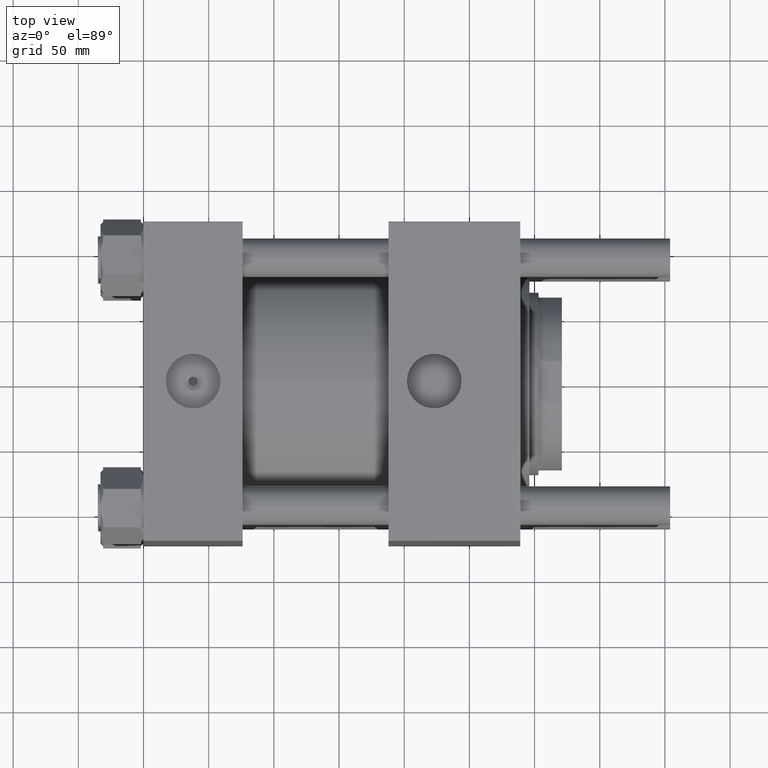
[diagram: clean part render]
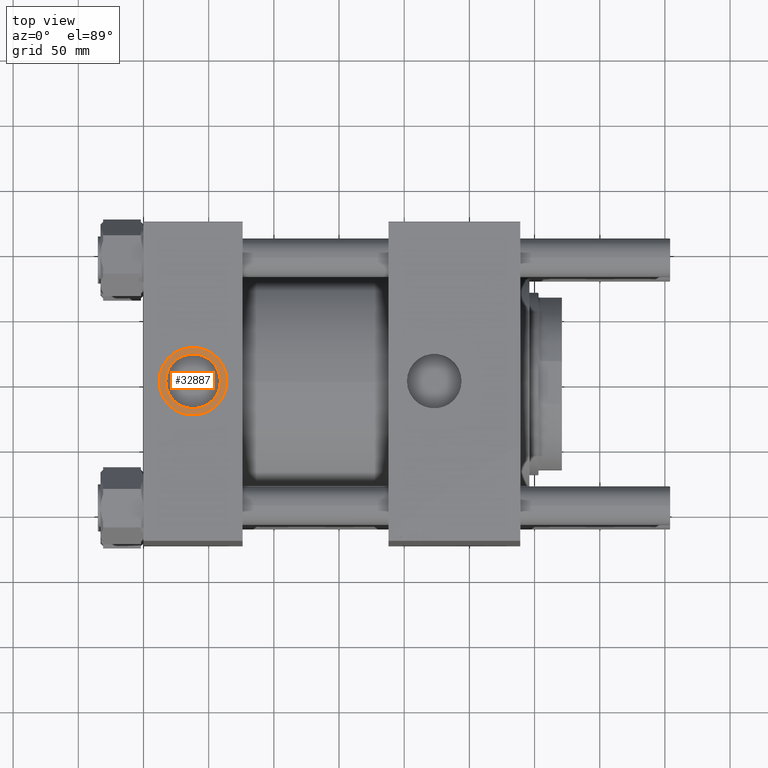
[diagram: same view with one face highlighted and labeled with its STEP entity id]
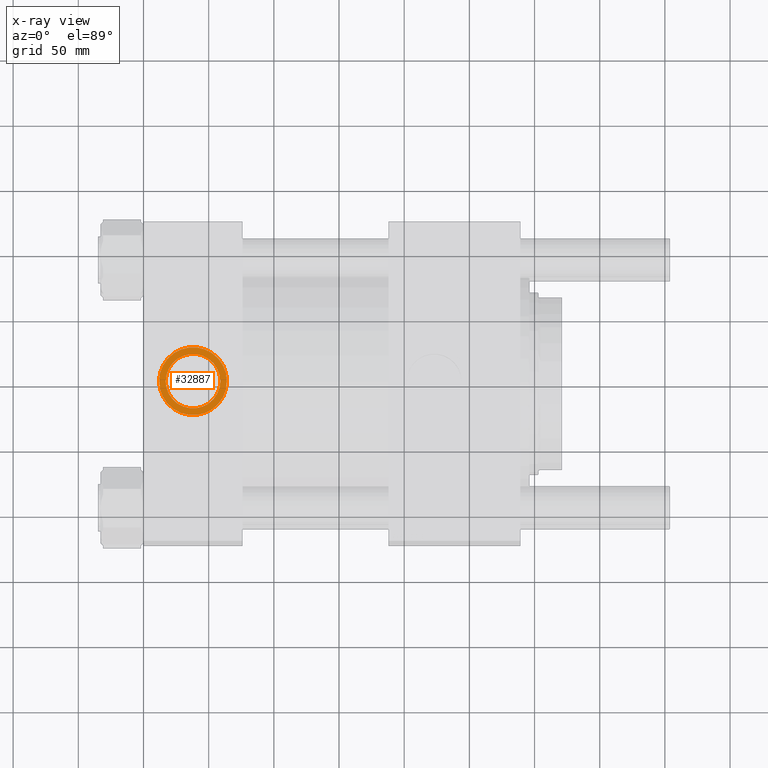
[diagram: x-ray of the same camera — body ghosted, the highlighted face saturated]
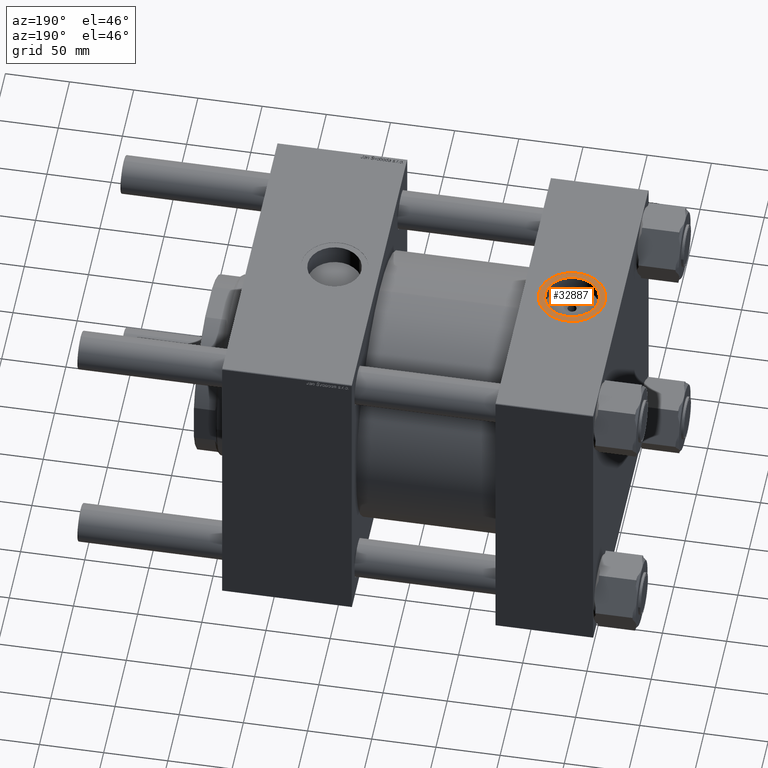
[diagram: same view with one face highlighted and labeled with its STEP entity id]
A machine part, top view. The second image highlights one B-rep face of the part: STEP entity #32887.
The next image is the same camera in x-ray: the body ghosted, the highlighted face saturated — about 0% of this face is hidden behind the body in this view.
A second angle (auxiliary view) of the same face is appended — the face is thin or edge-on in the first view.
In plain terms, the highlighted planar face has unit normal (0, 0, 1).
Its self-contained STEP definition (entity closure, byte-faithful):
#1014 = EDGE_CURVE ( 'NONE', #48303, #2970, #16586, .T. ) ;
#1757 = DIRECTION ( 'NONE',  ( 1.000000000000000000, 0.000000000000000000, -0.000000000000000000 ) ) ;
#2331 = ORIENTED_EDGE ( 'NONE', *, *, #22589, .F. ) ;
#2970 = VERTEX_POINT ( 'NONE', #51446 ) ;
#4443 = AXIS2_PLACEMENT_3D ( 'NONE', #17023, #48917, #52417 ) ;
#5108 = VERTEX_POINT ( 'NONE', #24423 ) ;
#5525 = PLANE ( 'NONE',  #27274 ) ;
#6092 = FACE_OUTER_BOUND ( 'NONE', #11756, .T. ) ;
#6136 = CARTESIAN_POINT ( 'NONE',  ( 11.99999999999998934, -5.489535702100919253E-15, 122.3000000000000114 ) ) ;
#9992 = CIRCLE ( 'NONE', #4443, 26.00000000000000355 ) ;
#10313 = AXIS2_PLACEMENT_3D ( 'NONE', #12982, #43443, #57076 ) ;
#10743 = CARTESIAN_POINT ( 'NONE',  ( 38.00000000000000000, -8.673617379884038628E-15, 122.3000000000000114 ) ) ;
#11756 = EDGE_LOOP ( 'NONE', ( #42822, #31120 ) ) ;
#12982 = CARTESIAN_POINT ( 'NONE',  ( 38.00000000000000000, -8.673617379884038628E-15, 122.3000000000000114 ) ) ;
#14495 = CARTESIAN_POINT ( 'NONE',  ( 38.00000000000000000, -8.673617379884038628E-15, 122.3000000000000114 ) ) ;
#16586 = CIRCLE ( 'NONE', #37875, 26.00000000000000355 ) ;
#17023 = CARTESIAN_POINT ( 'NONE',  ( 38.00000000000000000, -8.673617379884038628E-15, 122.3000000000000114 ) ) ;
#18313 = CARTESIAN_POINT ( 'NONE',  ( 38.00000000000000000, -8.673617379884038628E-15, 122.3000000000000114 ) ) ;
#22589 = EDGE_CURVE ( 'NONE', #5108, #26085, #53869, .T. ) ;
#23239 = DIRECTION ( 'NONE',  ( 0.000000000000000000, 0.000000000000000000, 1.000000000000000000 ) ) ;
#24423 = CARTESIAN_POINT ( 'NONE',  ( 17.03999999999999915, -6.106757688871186861E-15, 122.3000000000000114 ) ) ;
#26085 = VERTEX_POINT ( 'NONE', #35380 ) ;
#26973 = DIRECTION ( 'NONE',  ( 0.000000000000000000, 0.000000000000000000, 1.000000000000000000 ) ) ;
#27274 = AXIS2_PLACEMENT_3D ( 'NONE', #10743, #32222, #1757 ) ;
#31120 = ORIENTED_EDGE ( 'NONE', *, *, #1014, .T. ) ;
#31324 = DIRECTION ( 'NONE',  ( 1.000000000000000000, 0.000000000000000000, 0.000000000000000000 ) ) ;
#32222 = DIRECTION ( 'NONE',  ( 0.000000000000000000, 0.000000000000000000, 1.000000000000000000 ) ) ;
#32887 = ADVANCED_FACE ( 'NONE', ( #46131, #6092 ), #5525, .T. ) ;
#33096 = ORIENTED_EDGE ( 'NONE', *, *, #43812, .F. ) ;
#35380 = CARTESIAN_POINT ( 'NONE',  ( 58.96000000000000085, -8.673617379884038628E-15, 122.3000000000000114 ) ) ;
#37875 = AXIS2_PLACEMENT_3D ( 'NONE', #14495, #26973, #31324 ) ;
#40061 = DIRECTION ( 'NONE',  ( 1.000000000000000000, 0.000000000000000000, 0.000000000000000000 ) ) ;
#40912 = EDGE_LOOP ( 'NONE', ( #33096, #2331 ) ) ;
#42822 = ORIENTED_EDGE ( 'NONE', *, *, #47172, .T. ) ;
#43443 = DIRECTION ( 'NONE',  ( 0.000000000000000000, 0.000000000000000000, 1.000000000000000000 ) ) ;
#43812 = EDGE_CURVE ( 'NONE', #26085, #5108, #49720, .T. ) ;
#44146 = AXIS2_PLACEMENT_3D ( 'NONE', #18313, #23239, #40061 ) ;
#46131 = FACE_BOUND ( 'NONE', #40912, .T. ) ;
#47172 = EDGE_CURVE ( 'NONE', #2970, #48303, #9992, .T. ) ;
#48303 = VERTEX_POINT ( 'NONE', #6136 ) ;
#48917 = DIRECTION ( 'NONE',  ( 0.000000000000000000, 0.000000000000000000, 1.000000000000000000 ) ) ;
#49720 = CIRCLE ( 'NONE', #44146, 20.96000000000000085 ) ;
#51446 = CARTESIAN_POINT ( 'NONE',  ( 64.00000000000000000, -8.673617379884038628E-15, 122.3000000000000114 ) ) ;
#52417 = DIRECTION ( 'NONE',  ( 1.000000000000000000, 0.000000000000000000, 0.000000000000000000 ) ) ;
#53869 = CIRCLE ( 'NONE', #10313, 20.96000000000000085 ) ;
#57076 = DIRECTION ( 'NONE',  ( 1.000000000000000000, 0.000000000000000000, 0.000000000000000000 ) ) ;